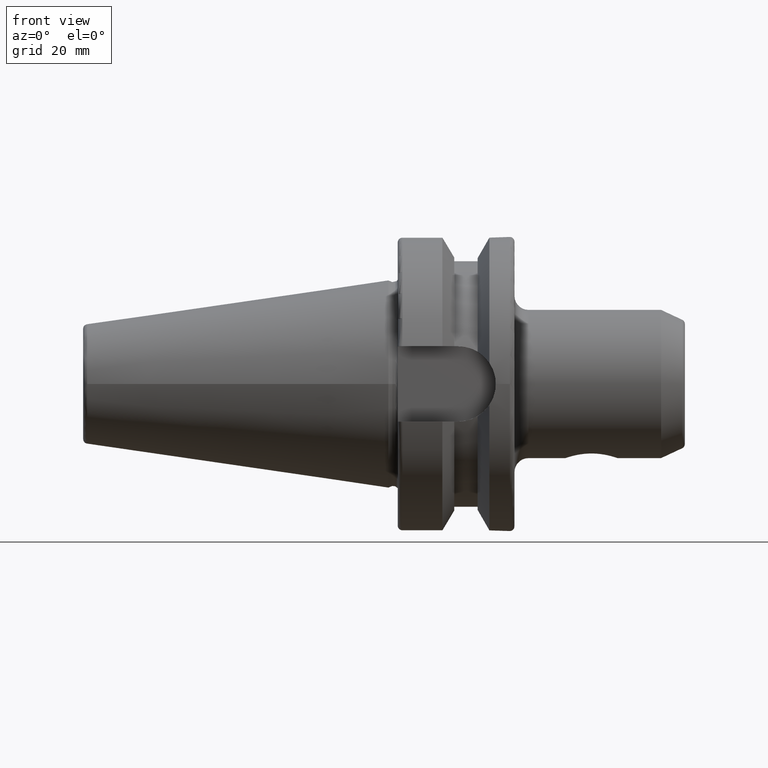
[diagram: clean part render]
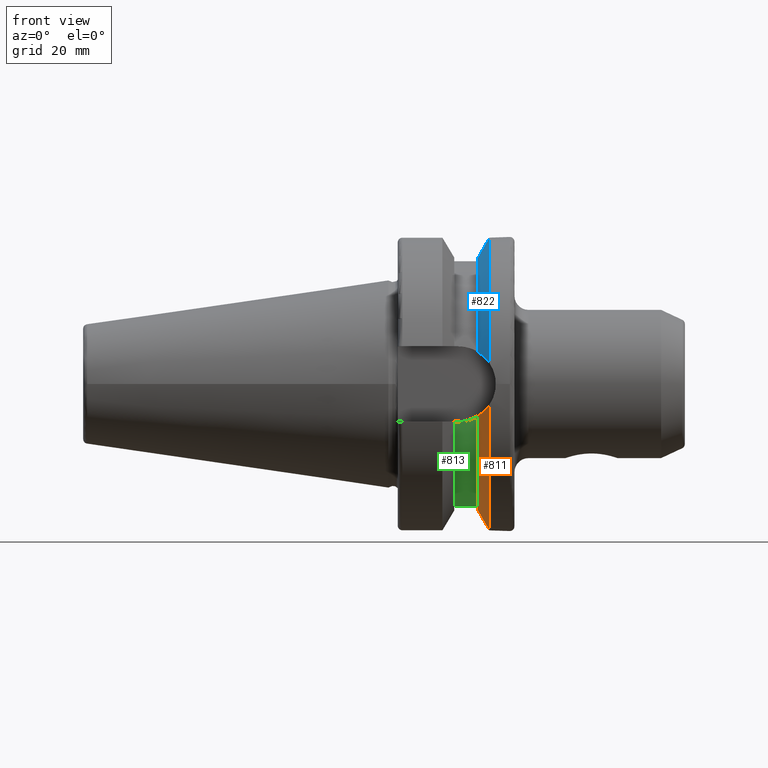
[diagram: same view with three faces highlighted in distinct colors, each labeled with its STEP entity id]
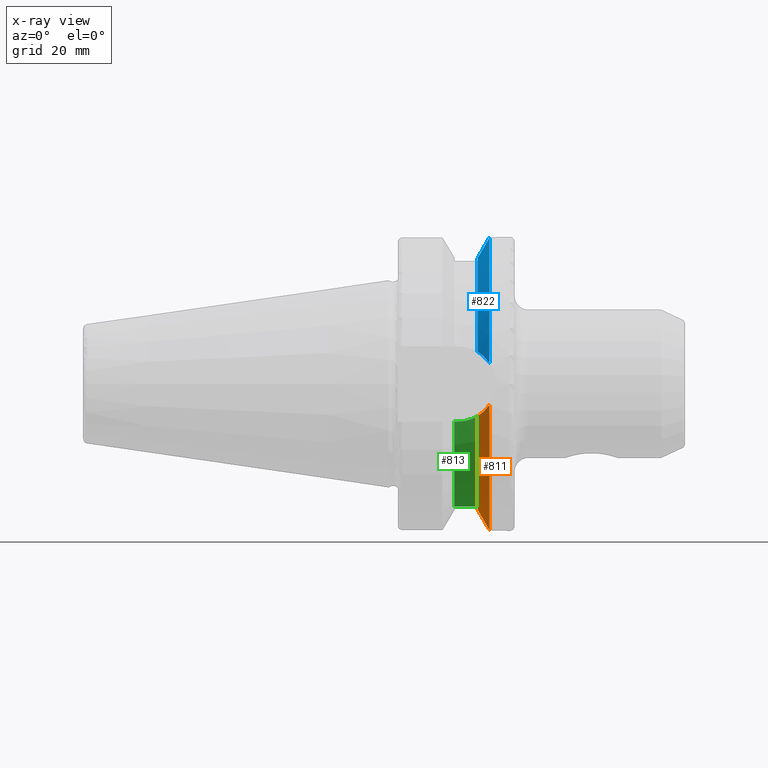
[diagram: x-ray of the same camera — body ghosted, the three highlighted faces saturated]
A machine part, front view with three faces highlighted in distinct colors.
The next image is the same camera in x-ray (body ghosted, the three faces saturated) — at least one of them is partly hidden behind the body in this view.
Their STEP definitions:

[orange] entity #811 — the highlighted conical surface has half-angle 60.125 deg.
#37=CONICAL_SURFACE('',#903,29.2970358274569,1.0493792127616);
#77=CIRCLE('',#900,31.5);
#80=CIRCLE('',#904,27.0940716549138);
#146=FACE_OUTER_BOUND('',#199,.T.);
#199=EDGE_LOOP('',(#642,#643,#644,#645));
#238=B_SPLINE_CURVE_WITH_KNOTS('',3,(#1487,#1488,#1489,#1490,#1491,#1492),
 .UNSPECIFIED.,.F.,.F.,(4,2,4),(3.12975744792551,3.6269928875698,3.7084873746139),
 .UNSPECIFIED.);
#246=B_SPLINE_CURVE_WITH_KNOTS('',3,(#1603,#1604,#1605,#1606,#1607,#1608),
 .UNSPECIFIED.,.F.,.F.,(4,2,4),(1.46421027899563,1.54570476603974,2.04294020568402),
 .UNSPECIFIED.);
#364=VERTEX_POINT('',#1484);
#365=VERTEX_POINT('',#1486);
#387=VERTEX_POINT('',#1585);
#389=VERTEX_POINT('',#1601);
#454=EDGE_CURVE('',#365,#364,#238,.T.);
#480=EDGE_CURVE('',#365,#387,#77,.T.);
#484=EDGE_CURVE('',#364,#389,#80,.T.);
#485=EDGE_CURVE('',#389,#387,#246,.T.);
#642=ORIENTED_EDGE('',*,*,#454,.T.);
#643=ORIENTED_EDGE('',*,*,#484,.T.);
#644=ORIENTED_EDGE('',*,*,#485,.T.);
#645=ORIENTED_EDGE('',*,*,#480,.F.);
#811=ADVANCED_FACE('',(#146),#37,.T.);
#900=AXIS2_PLACEMENT_3D('',#1586,#1064,#1065);
#903=AXIS2_PLACEMENT_3D('',#1600,#1070,#1071);
#904=AXIS2_PLACEMENT_3D('',#1602,#1072,#1073);
#1064=DIRECTION('center_axis',(1.,0.,0.));
#1065=DIRECTION('ref_axis',(0.,0.,-1.));
#1070=DIRECTION('center_axis',(1.,0.,0.));
#1071=DIRECTION('ref_axis',(0.,1.,0.));
#1072=DIRECTION('center_axis',(1.,0.,0.));
#1073=DIRECTION('ref_axis',(0.,0.,-1.));
#1484=CARTESIAN_POINT('',(19.1,-26.201311395455,-6.89782574439221));
#1486=CARTESIAN_POINT('',(21.6309636926618,-31.1782420264945,-4.49079326370462));
#1487=CARTESIAN_POINT('Ctrl Pts',(21.6309636926618,-31.1782420264945,-4.49079326370461));
#1488=CARTESIAN_POINT('Ctrl Pts',(20.9728756148302,-29.8797957262939,-5.46983244373119));
#1489=CARTESIAN_POINT('Ctrl Pts',(20.1784155384866,-28.3157123387483,-6.1823136897693));
#1490=CARTESIAN_POINT('Ctrl Pts',(19.3406963650696,-26.6728819297427,-6.74867108656043));
#1491=CARTESIAN_POINT('Ctrl Pts',(19.2210929544554,-26.438473693351,-6.82497151762397));
#1492=CARTESIAN_POINT('Ctrl Pts',(19.1,-26.201311395455,-6.89782574439222));
#1585=CARTESIAN_POINT('',(21.6309636926618,31.1782420264945,-4.49079326370462));
#1586=CARTESIAN_POINT('Origin',(21.6309636926618,0.,0.));
#1600=CARTESIAN_POINT('Origin',(20.3654818463309,0.,0.));
#1601=CARTESIAN_POINT('',(19.1,26.201311395455,-6.89782574439221));
#1602=CARTESIAN_POINT('Origin',(19.1,0.,0.));
#1603=CARTESIAN_POINT('Ctrl Pts',(19.1,26.201311395455,-6.89782574439221));
#1604=CARTESIAN_POINT('Ctrl Pts',(19.2210929544554,26.438473693351,-6.82497151762396));
#1605=CARTESIAN_POINT('Ctrl Pts',(19.3406963650696,26.6728819297427,-6.74867108656043));
#1606=CARTESIAN_POINT('Ctrl Pts',(20.1784155384866,28.3157123387483,-6.1823136897693));
#1607=CARTESIAN_POINT('Ctrl Pts',(20.9728756148302,29.8797957262938,-5.46983244373119));
#1608=CARTESIAN_POINT('Ctrl Pts',(21.6309636926618,31.1782420264945,-4.49079326370462));

[blue] entity #822 — the highlighted conical surface has half-angle 60.125 deg.
#39=CONICAL_SURFACE('',#922,29.2970358274569,1.0493792127616);
#78=CIRCLE('',#901,31.5);
#88=CIRCLE('',#923,27.0940716549138);
#157=FACE_OUTER_BOUND('',#210,.T.);
#210=EDGE_LOOP('',(#702,#703,#704,#705));
#241=B_SPLINE_CURVE_WITH_KNOTS('',3,(#1508,#1509,#1510,#1511,#1512,#1513),
 .UNSPECIFIED.,.F.,.F.,(4,2,4),(1.46421027899563,1.54570476603974,2.04294020568402),
 .UNSPECIFIED.);
#250=B_SPLINE_CURVE_WITH_KNOTS('',3,(#1667,#1668,#1669,#1670,#1671,#1672),
 .UNSPECIFIED.,.F.,.F.,(4,2,4),(3.12975744792551,3.6269928875698,3.7084873746139),
 .UNSPECIFIED.);
#367=VERTEX_POINT('',#1500);
#368=VERTEX_POINT('',#1507);
#388=VERTEX_POINT('',#1587);
#401=VERTEX_POINT('',#1665);
#457=EDGE_CURVE('',#368,#367,#241,.T.);
#482=EDGE_CURVE('',#388,#367,#78,.T.);
#504=EDGE_CURVE('',#388,#401,#250,.T.);
#515=EDGE_CURVE('',#401,#368,#88,.T.);
#702=ORIENTED_EDGE('',*,*,#457,.T.);
#703=ORIENTED_EDGE('',*,*,#482,.F.);
#704=ORIENTED_EDGE('',*,*,#504,.T.);
#705=ORIENTED_EDGE('',*,*,#515,.T.);
#822=ADVANCED_FACE('',(#157),#39,.T.);
#901=AXIS2_PLACEMENT_3D('',#1598,#1066,#1067);
#922=AXIS2_PLACEMENT_3D('',#1704,#1123,#1124);
#923=AXIS2_PLACEMENT_3D('',#1705,#1125,#1126);
#1066=DIRECTION('center_axis',(1.,0.,0.));
#1067=DIRECTION('ref_axis',(0.,0.,-1.));
#1123=DIRECTION('center_axis',(1.,0.,0.));
#1124=DIRECTION('ref_axis',(0.,1.,0.));
#1125=DIRECTION('center_axis',(1.,0.,0.));
#1126=DIRECTION('ref_axis',(0.,0.,-1.));
#1500=CARTESIAN_POINT('',(21.6309636926618,-31.1782420264945,4.49079326370462));
#1507=CARTESIAN_POINT('',(19.1,-26.201311395455,6.89782574439221));
#1508=CARTESIAN_POINT('Ctrl Pts',(19.1,-26.201311395455,6.89782574439221));
#1509=CARTESIAN_POINT('Ctrl Pts',(19.2210929544554,-26.438473693351,6.82497151762397));
#1510=CARTESIAN_POINT('Ctrl Pts',(19.3406963650696,-26.6728819297427,6.74867108656043));
#1511=CARTESIAN_POINT('Ctrl Pts',(20.1784155384866,-28.3157123387483,6.1823136897693));
#1512=CARTESIAN_POINT('Ctrl Pts',(20.9728756148302,-29.8797957262938,5.46983244373119));
#1513=CARTESIAN_POINT('Ctrl Pts',(21.6309636926618,-31.1782420264945,4.49079326370462));
#1587=CARTESIAN_POINT('',(21.6309636926618,31.1782420264945,4.49079326370462));
#1598=CARTESIAN_POINT('Origin',(21.6309636926618,0.,0.));
#1665=CARTESIAN_POINT('',(19.1,26.201311395455,6.89782574439221));
#1667=CARTESIAN_POINT('Ctrl Pts',(21.6309636926618,31.1782420264945,4.49079326370461));
#1668=CARTESIAN_POINT('Ctrl Pts',(20.9728756148302,29.8797957262938,5.46983244373119));
#1669=CARTESIAN_POINT('Ctrl Pts',(20.1784155384866,28.3157123387483,6.1823136897693));
#1670=CARTESIAN_POINT('Ctrl Pts',(19.3406963650696,26.6728819297427,6.74867108656043));
#1671=CARTESIAN_POINT('Ctrl Pts',(19.2210929544554,26.438473693351,6.82497151762397));
#1672=CARTESIAN_POINT('Ctrl Pts',(19.1,26.201311395455,6.89782574439222));
#1704=CARTESIAN_POINT('Origin',(20.3654818463309,0.,0.));
#1705=CARTESIAN_POINT('Origin',(19.1,0.,0.));

[green] entity #813 — the highlighted cylindrical surface (partial cylindrical patch) has radius 26.3 mm, axis along (1, 0, 0).
#81=CIRCLE('',#906,26.3);
#82=CIRCLE('',#908,26.3);
#120=CYLINDRICAL_SURFACE('',#907,26.3);
#148=FACE_OUTER_BOUND('',#201,.T.);
#201=EDGE_LOOP('',(#650,#651,#652,#653,#654,#655));
#237=B_SPLINE_CURVE_WITH_KNOTS('',3,(#1478,#1479,#1480,#1481,#1482,#1483),
 .UNSPECIFIED.,.F.,.F.,(4,2,4),(2.02427460070182,2.13747311195296,2.44288295924093),
 .UNSPECIFIED.);
#247=B_SPLINE_CURVE_WITH_KNOTS('',3,(#1618,#1619,#1620,#1621,#1622,#1623),
 .UNSPECIFIED.,.F.,.F.,(4,2,4),(2.44288295924093,2.7482928065289,2.86149131778004),
 .UNSPECIFIED.);
#270=LINE('',#1555,#316);
#278=LINE('',#1617,#324);
#316=VECTOR('',#1051,10.);
#324=VECTOR('',#1083,10.);
#362=VERTEX_POINT('',#1476);
#363=VERTEX_POINT('',#1477);
#379=VERTEX_POINT('',#1554);
#390=VERTEX_POINT('',#1610);
#391=VERTEX_POINT('',#1614);
#392=VERTEX_POINT('',#1616);
#452=EDGE_CURVE('',#362,#363,#237,.T.);
#470=EDGE_CURVE('',#363,#379,#270,.T.);
#486=EDGE_CURVE('',#362,#390,#81,.T.);
#488=EDGE_CURVE('',#379,#391,#82,.T.);
#489=EDGE_CURVE('',#391,#392,#278,.T.);
#490=EDGE_CURVE('',#392,#390,#247,.T.);
#650=ORIENTED_EDGE('',*,*,#452,.T.);
#651=ORIENTED_EDGE('',*,*,#470,.T.);
#652=ORIENTED_EDGE('',*,*,#488,.T.);
#653=ORIENTED_EDGE('',*,*,#489,.T.);
#654=ORIENTED_EDGE('',*,*,#490,.T.);
#655=ORIENTED_EDGE('',*,*,#486,.F.);
#813=ADVANCED_FACE('',(#148),#120,.T.);
#906=AXIS2_PLACEMENT_3D('',#1611,#1076,#1077);
#907=AXIS2_PLACEMENT_3D('',#1613,#1079,#1080);
#908=AXIS2_PLACEMENT_3D('',#1615,#1081,#1082);
#1051=DIRECTION('',(-1.,0.,0.));
#1076=DIRECTION('center_axis',(1.,0.,0.));
#1077=DIRECTION('ref_axis',(0.,0.,-1.));
#1079=DIRECTION('center_axis',(1.,0.,0.));
#1080=DIRECTION('ref_axis',(0.,1.,0.));
#1081=DIRECTION('center_axis',(1.,0.,0.));
#1082=DIRECTION('ref_axis',(0.,0.,-1.));
#1083=DIRECTION('',(1.,0.,0.));
#1476=CARTESIAN_POINT('',(19.1,-25.3793222919762,-6.89782574439221));
#1477=CARTESIAN_POINT('',(14.95,-25.0377215417058,-8.05));
#1478=CARTESIAN_POINT('Ctrl Pts',(19.1,-25.3793222919762,-6.89782574439221));
#1479=CARTESIAN_POINT('Ctrl Pts',(18.7623374744972,-25.3241080721198,-7.10097664045187));
#1480=CARTESIAN_POINT('Ctrl Pts',(18.4068260684762,-25.2726009715968,-7.28086186600679));
#1481=CARTESIAN_POINT('Ctrl Pts',(17.0490724969254,-25.1063150193149,-7.84520188991776));
#1482=CARTESIAN_POINT('Ctrl Pts',(15.9680328242932,-25.0377215417058,-8.05));
#1483=CARTESIAN_POINT('Ctrl Pts',(14.95,-25.0377215417058,-8.05));
#1554=CARTESIAN_POINT('',(14.1,-25.0377215417058,-8.05));
#1555=CARTESIAN_POINT('',(16.6,-25.0377215417058,-8.05));
#1610=CARTESIAN_POINT('',(19.1,25.3793222919762,-6.89782574439221));
#1611=CARTESIAN_POINT('Origin',(19.1,0.,0.));
#1613=CARTESIAN_POINT('Origin',(16.6,0.,0.));
#1614=CARTESIAN_POINT('',(14.1,25.0377215417058,-8.05));
#1615=CARTESIAN_POINT('Origin',(14.1,0.,0.));
#1616=CARTESIAN_POINT('',(14.95,25.0377215417058,-8.05));
#1617=CARTESIAN_POINT('',(16.6,25.0377215417058,-8.05));
#1618=CARTESIAN_POINT('Ctrl Pts',(14.95,25.0377215417058,-8.05));
#1619=CARTESIAN_POINT('Ctrl Pts',(15.9680328242932,25.0377215417058,-8.05));
#1620=CARTESIAN_POINT('Ctrl Pts',(17.0490724969254,25.1063150193149,-7.84520188991776));
#1621=CARTESIAN_POINT('Ctrl Pts',(18.4068260684762,25.2726009715968,-7.28086186600679));
#1622=CARTESIAN_POINT('Ctrl Pts',(18.7623374744972,25.3241080721198,-7.10097664045187));
#1623=CARTESIAN_POINT('Ctrl Pts',(19.1,25.3793222919762,-6.89782574439221));